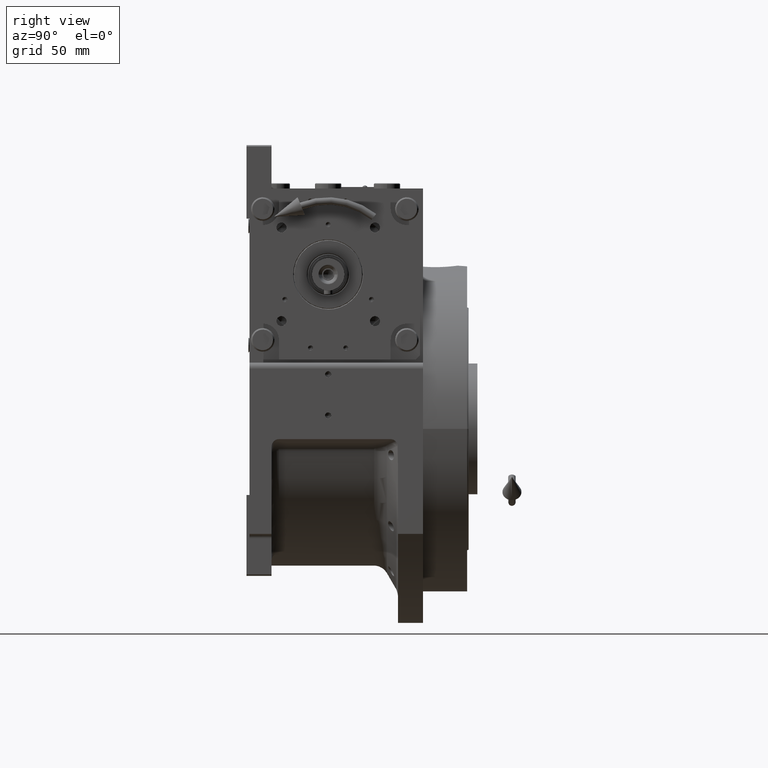
[diagram: clean part render]
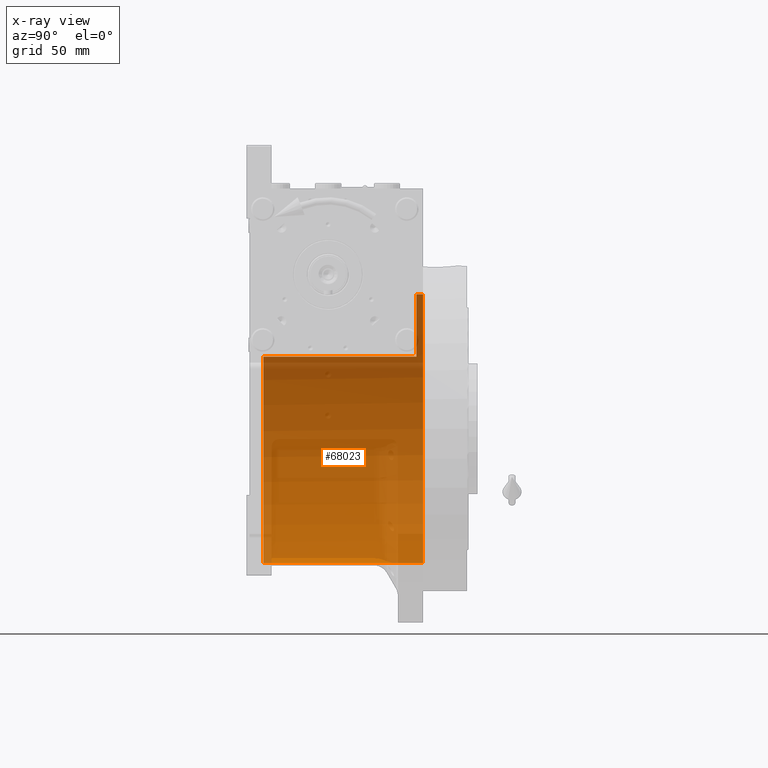
[diagram: x-ray — body ghosted, one internal face saturated and labeled with its STEP entity id]
A machine part, right view, then the same camera in x-ray: the body is ghosted and one INTERNAL B-rep face — a face not visible from any outside direction — is saturated and labeled: STEP entity #68023.
In plain terms, the highlighted cylindrical surface (partial cylindrical patch) has radius 91.5 mm, axis along (0, -1, 0).
Its self-contained STEP definition (entity closure, byte-faithful):
#300 = VERTEX_POINT ( 'NONE', #62611 ) ;
#471 = AXIS2_PLACEMENT_3D ( 'NONE', #6740, #37046, #37710 ) ;
#1373 = EDGE_CURVE ( 'NONE', #47190, #21217, #32735, .T. ) ;
#2211 = CIRCLE ( 'NONE', #26383, 91.50000000000000000 ) ;
#2521 = VECTOR ( 'NONE', #59456, 1000.000000000000000 ) ;
#4017 = VERTEX_POINT ( 'NONE', #48984 ) ;
#4441 = CARTESIAN_POINT ( 'NONE',  ( 0.000000000000000000, 69.00000000000004263, -91.50000000000000000 ) ) ;
#5364 = DIRECTION ( 'NONE',  ( 0.000000000000000000, 1.000000000000000000, 0.000000000000000000 ) ) ;
#6740 = CARTESIAN_POINT ( 'NONE',  ( 0.000000000000000000, 64.50000000000000000, 0.000000000000000000 ) ) ;
#6803 = CARTESIAN_POINT ( 'NONE',  ( -77.27386362800814368, 60.00000000000000000, 48.99999999999998579 ) ) ;
#12702 = CARTESIAN_POINT ( 'NONE',  ( 0.000000000000000000, 64.50000000000000000, -91.50000000000000000 ) ) ;
#12982 = EDGE_CURVE ( 'NONE', #25332, #20789, #41580, .T. ) ;
#13305 = EDGE_CURVE ( 'NONE', #300, #4017, #17466, .T. ) ;
#13404 = EDGE_CURVE ( 'NONE', #20789, #47190, #44270, .T. ) ;
#16895 = CARTESIAN_POINT ( 'NONE',  ( -77.27386362800812947, 69.00000000000004263, 48.99999999999998579 ) ) ;
#17466 = LINE ( 'NONE', #38464, #2521 ) ;
#18536 = CARTESIAN_POINT ( 'NONE',  ( -77.27386362800814368, -44.00000000000000000, 49.00000000000000000 ) ) ;
#20789 = VERTEX_POINT ( 'NONE', #61913 ) ;
#21217 = VERTEX_POINT ( 'NONE', #6803 ) ;
#22761 = DIRECTION ( 'NONE',  ( -0.000000000000000000, 1.000000000000000000, -0.000000000000000000 ) ) ;
#23879 = DIRECTION ( 'NONE',  ( 0.000000000000000000, 0.000000000000000000, -1.000000000000000000 ) ) ;
#25332 = VERTEX_POINT ( 'NONE', #12702 ) ;
#26044 = ORIENTED_EDGE ( 'NONE', *, *, #1373, .F. ) ;
#26383 = AXIS2_PLACEMENT_3D ( 'NONE', #35997, #5364, #30833 ) ;
#27849 = AXIS2_PLACEMENT_3D ( 'NONE', #62758, #31087, #52085 ) ;
#30670 = ORIENTED_EDGE ( 'NONE', *, *, #13404, .F. ) ;
#30833 = DIRECTION ( 'NONE',  ( 1.776356839400250465E-15, 0.000000000000000000, -1.000000000000000000 ) ) ;
#31087 = DIRECTION ( 'NONE',  ( 0.000000000000000000, 1.000000000000000000, 0.000000000000000000 ) ) ;
#31118 = EDGE_LOOP ( 'NONE', ( #59739, #38129, #47502, #26044, #30670, #47189 ) ) ;
#31889 = VECTOR ( 'NONE', #67759, 1000.000000000000000 ) ;
#32735 = LINE ( 'NONE', #16895, #54758 ) ;
#33555 = EDGE_CURVE ( 'NONE', #300, #25332, #63109, .T. ) ;
#34881 = FACE_OUTER_BOUND ( 'NONE', #31118, .T. ) ;
#35997 = CARTESIAN_POINT ( 'NONE',  ( 0.000000000000000000, 60.00000000000000000, 0.000000000000000000 ) ) ;
#37046 = DIRECTION ( 'NONE',  ( -0.000000000000000000, -1.000000000000000000, -0.000000000000000000 ) ) ;
#37710 = DIRECTION ( 'NONE',  ( 0.000000000000000000, 0.000000000000000000, 1.000000000000000000 ) ) ;
#38129 = ORIENTED_EDGE ( 'NONE', *, *, #13305, .T. ) ;
#38464 = CARTESIAN_POINT ( 'NONE',  ( 1.120551821219827868E-14, 69.00000000000004263, 91.50000000000000000 ) ) ;
#41580 = LINE ( 'NONE', #4441, #31889 ) ;
#43165 = AXIS2_PLACEMENT_3D ( 'NONE', #64843, #55875, #23879 ) ;
#44270 = CIRCLE ( 'NONE', #27849, 91.50000000000000000 ) ;
#47189 = ORIENTED_EDGE ( 'NONE', *, *, #12982, .F. ) ;
#47190 = VERTEX_POINT ( 'NONE', #18536 ) ;
#47502 = ORIENTED_EDGE ( 'NONE', *, *, #57377, .F. ) ;
#48984 = CARTESIAN_POINT ( 'NONE',  ( 1.120551821219827868E-14, 60.00000000000000000, 91.50000000000000000 ) ) ;
#52085 = DIRECTION ( 'NONE',  ( 0.000000000000000000, 0.000000000000000000, 1.000000000000000000 ) ) ;
#54758 = VECTOR ( 'NONE', #22761, 1000.000000000000000 ) ;
#55875 = DIRECTION ( 'NONE',  ( 0.000000000000000000, -1.000000000000000000, 0.000000000000000000 ) ) ;
#57377 = EDGE_CURVE ( 'NONE', #21217, #4017, #2211, .T. ) ;
#59456 = DIRECTION ( 'NONE',  ( 0.000000000000000000, -1.000000000000000000, 0.000000000000000000 ) ) ;
#59739 = ORIENTED_EDGE ( 'NONE', *, *, #33555, .F. ) ;
#61913 = CARTESIAN_POINT ( 'NONE',  ( 0.000000000000000000, -44.00000000000000000, -91.50000000000000000 ) ) ;
#62611 = CARTESIAN_POINT ( 'NONE',  ( 1.120551821219827868E-14, 64.50000000000000000, 91.50000000000000000 ) ) ;
#62758 = CARTESIAN_POINT ( 'NONE',  ( 0.000000000000000000, -44.00000000000000000, 0.000000000000000000 ) ) ;
#63109 = CIRCLE ( 'NONE', #471, 91.50000000000000000 ) ;
#64843 = CARTESIAN_POINT ( 'NONE',  ( 0.000000000000000000, 69.00000000000004263, 0.000000000000000000 ) ) ;
#65168 = CYLINDRICAL_SURFACE ( 'NONE', #43165, 91.50000000000000000 ) ;
#67759 = DIRECTION ( 'NONE',  ( 0.000000000000000000, -1.000000000000000000, 0.000000000000000000 ) ) ;
#68023 = ADVANCED_FACE ( 'NONE', ( #34881 ), #65168, .F. ) ;